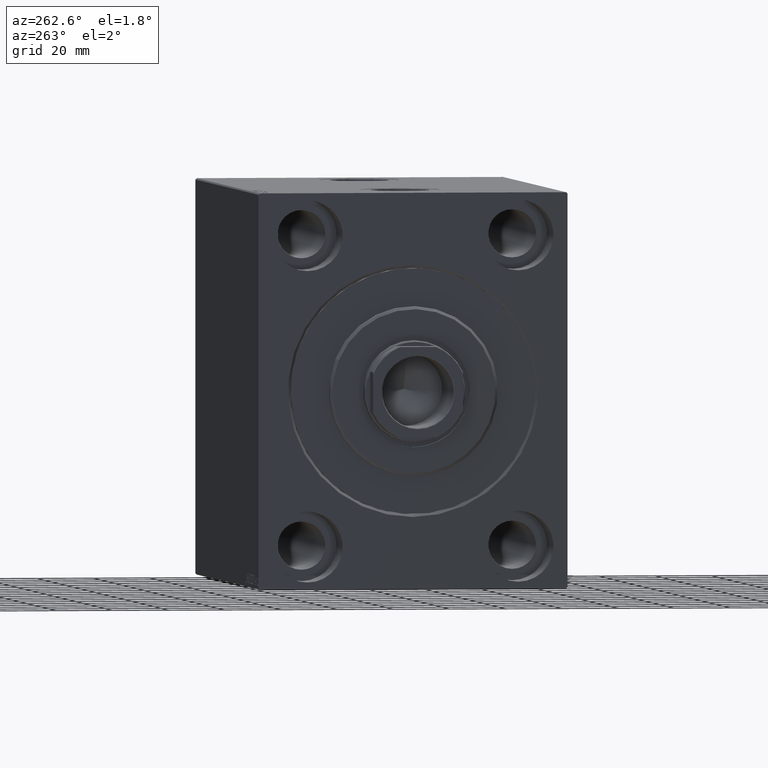
[diagram: clean part render]
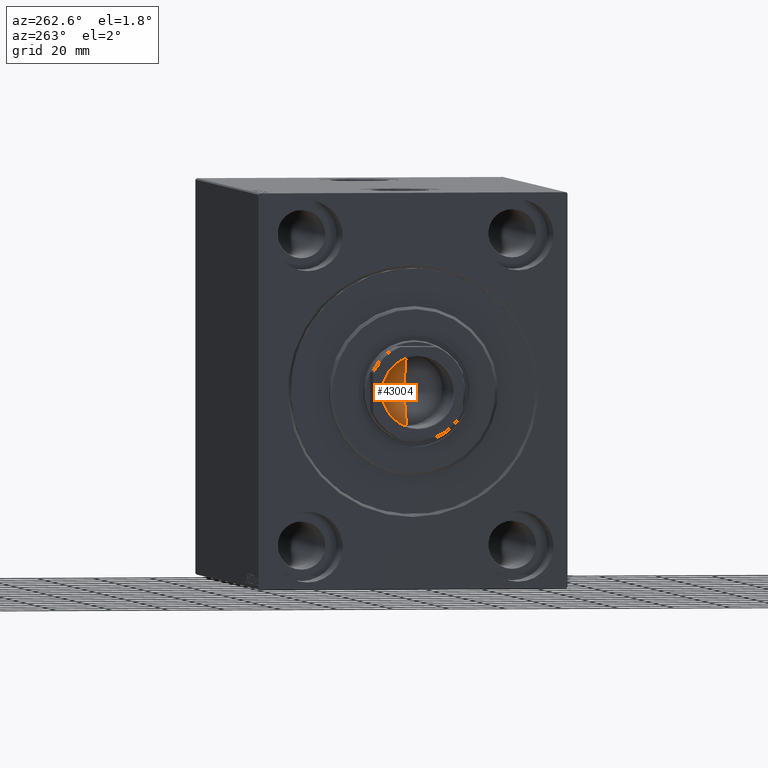
[diagram: same view with one face highlighted and labeled with its STEP entity id]
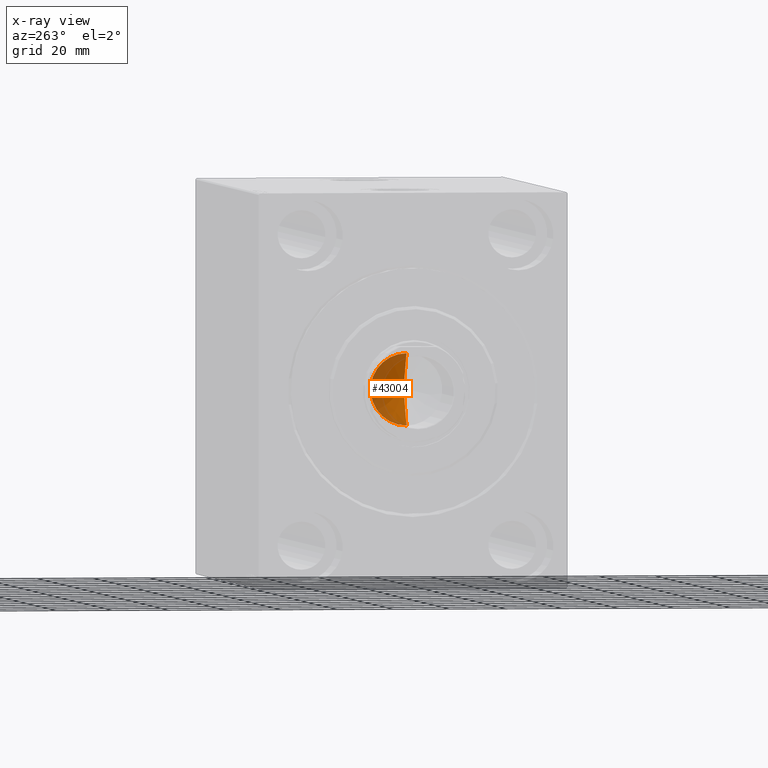
[diagram: x-ray of the same camera — body ghosted, the highlighted face saturated]
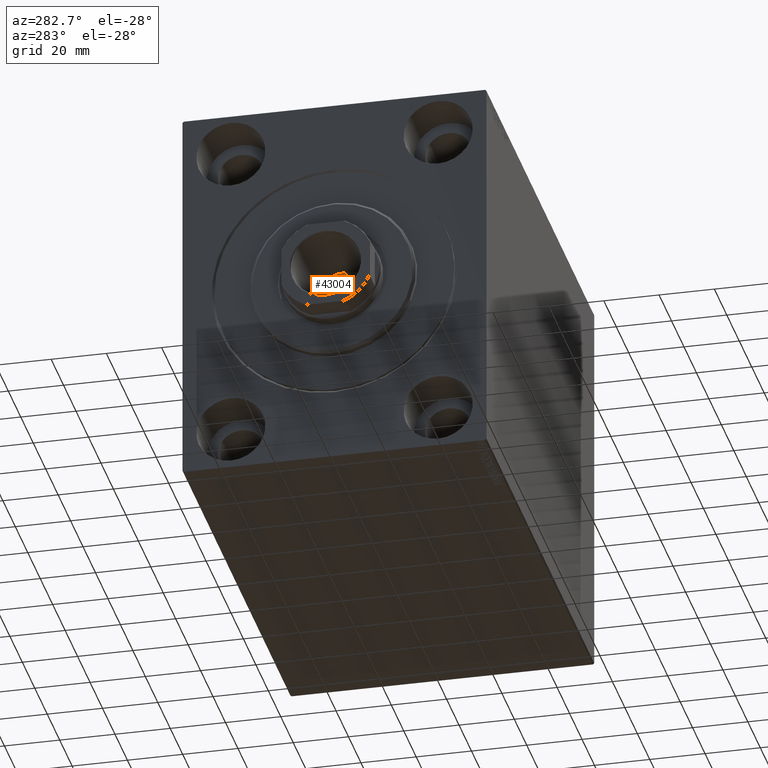
[diagram: same view with one face highlighted and labeled with its STEP entity id]
A machine part, auxiliary view. The second image highlights one B-rep face of the part: STEP entity #43004.
The next image is the same camera in x-ray: the body ghosted, the highlighted face saturated — about 42% of this face is hidden behind the body in this view.
A second angle (auxiliary view) of the same face is appended — the face is thin or edge-on in the first view.
In plain terms, the highlighted conical surface has half-angle 59 deg.
Its self-contained STEP definition (entity closure, byte-faithful):
#1428 = AXIS2_PLACEMENT_3D ( 'NONE', #42159, #25223, #19141 ) ;
#2115 = EDGE_LOOP ( 'NONE', ( #4463, #21135, #30959 ) ) ;
#4199 = CARTESIAN_POINT ( 'NONE',  ( 12.74999999999999467, 0.000000000000000000, 134.0000000000000000 ) ) ;
#4329 = VERTEX_POINT ( 'NONE', #26654 ) ;
#4463 = ORIENTED_EDGE ( 'NONE', *, *, #15361, .F. ) ;
#5538 = VECTOR ( 'NONE', #36774, 1000.000000000000000 ) ;
#7540 = LINE ( 'NONE', #4199, #42690 ) ;
#13395 = DIRECTION ( 'NONE',  ( -0.000000000000000000, -0.000000000000000000, 1.000000000000000000 ) ) ;
#15361 = EDGE_CURVE ( 'NONE', #4329, #23698, #30320, .T. ) ;
#19141 = DIRECTION ( 'NONE',  ( 1.000000000000000000, 0.000000000000000000, 0.000000000000000000 ) ) ;
#19215 = VERTEX_POINT ( 'NONE', #31630 ) ;
#19358 = CARTESIAN_POINT ( 'NONE',  ( -12.74999999999999467, 1.561424668912874519E-15, 134.0000000000000000 ) ) ;
#20753 = FACE_OUTER_BOUND ( 'NONE', #2115, .T. ) ;
#21135 = ORIENTED_EDGE ( 'NONE', *, *, #21423, .T. ) ;
#21148 = DIRECTION ( 'NONE',  ( 0.8571673007021118895, 0.000000000000000000, 0.5150380749100549327 ) ) ;
#21423 = EDGE_CURVE ( 'NONE', #4329, #19215, #7540, .T. ) ;
#23237 = AXIS2_PLACEMENT_3D ( 'NONE', #43935, #13395, #40790 ) ;
#23698 = VERTEX_POINT ( 'NONE', #19358 ) ;
#25223 = DIRECTION ( 'NONE',  ( -0.000000000000000000, -0.000000000000000000, 1.000000000000000000 ) ) ;
#26392 = EDGE_CURVE ( 'NONE', #19215, #23698, #39862, .T. ) ;
#26654 = CARTESIAN_POINT ( 'NONE',  ( -1.026246296720136938E-14, 0.000000000000000000, 126.3390271073986071 ) ) ;
#30320 = LINE ( 'NONE', #43251, #5538 ) ;
#30959 = ORIENTED_EDGE ( 'NONE', *, *, #26392, .T. ) ;
#31630 = CARTESIAN_POINT ( 'NONE',  ( 12.74999999999999467, 0.000000000000000000, 134.0000000000000000 ) ) ;
#36774 = DIRECTION ( 'NONE',  ( -0.8571673007021118895, 1.049727191138618079E-16, 0.5150380749100549327 ) ) ;
#39862 = CIRCLE ( 'NONE', #1428, 12.74999999999999467 ) ;
#40790 = DIRECTION ( 'NONE',  ( 1.000000000000000000, 0.000000000000000000, 0.000000000000000000 ) ) ;
#42159 = CARTESIAN_POINT ( 'NONE',  ( 0.000000000000000000, 0.000000000000000000, 134.0000000000000000 ) ) ;
#42462 = CONICAL_SURFACE ( 'NONE', #23237, 12.74999999999999467, 1.029744258676653645 ) ;
#42690 = VECTOR ( 'NONE', #21148, 1000.000000000000000 ) ;
#43004 = ADVANCED_FACE ( 'NONE', ( #20753 ), #42462, .F. ) ;
#43251 = CARTESIAN_POINT ( 'NONE',  ( -12.74999999999999467, 1.561424668912874519E-15, 134.0000000000000000 ) ) ;
#43935 = CARTESIAN_POINT ( 'NONE',  ( 0.000000000000000000, 0.000000000000000000, 134.0000000000000000 ) ) ;